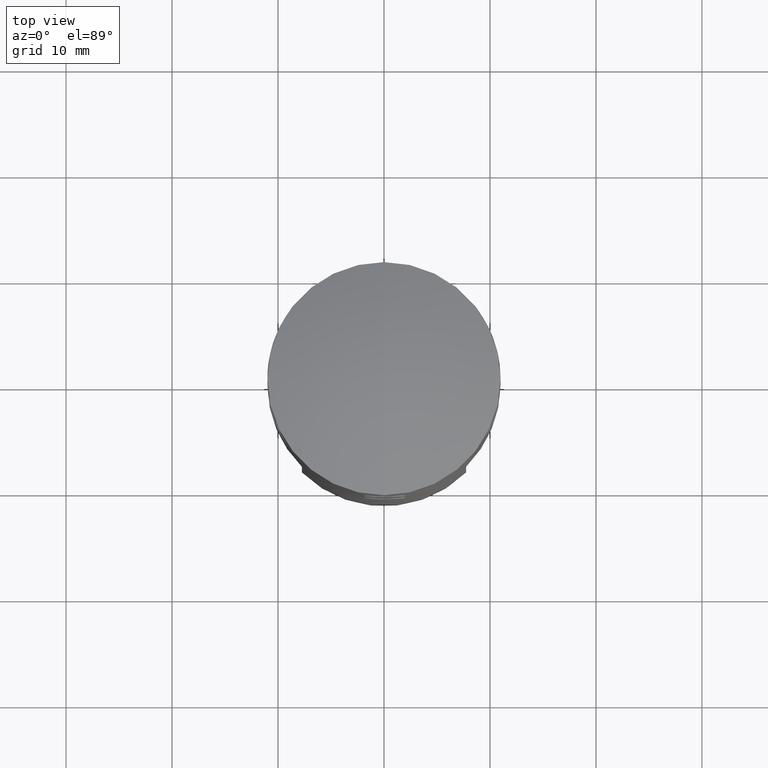
[diagram: clean part render]
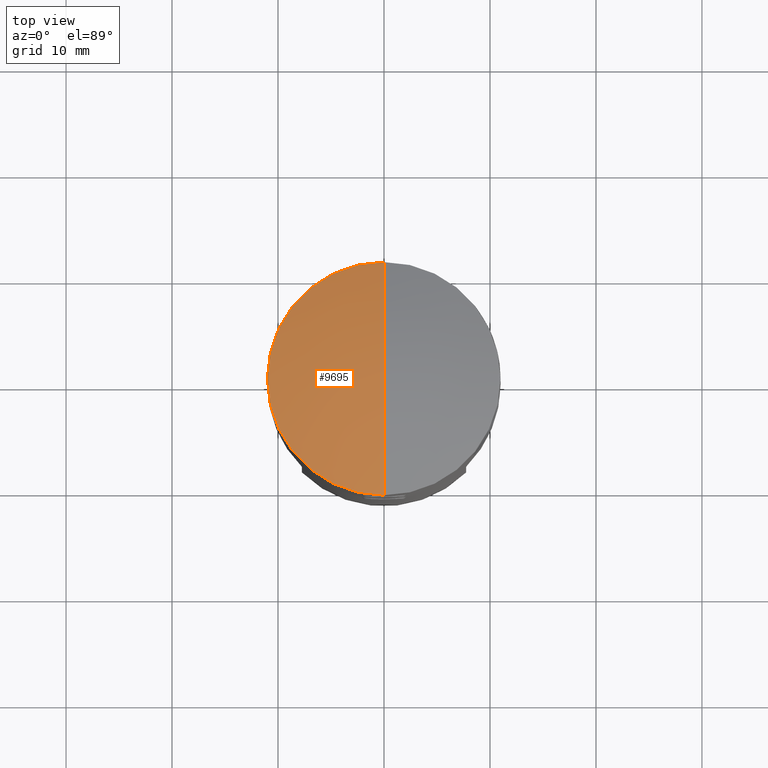
[diagram: same view with one face highlighted and labeled with its STEP entity id]
A machine part, top view. The second image highlights one B-rep face of the part: STEP entity #9695.
In plain terms, the highlighted spherical surface has radius 32.14 mm.
Its self-contained STEP definition (entity closure, byte-faithful):
#166 = CIRCLE ( 'NONE', #3909, 32.14000000000000057 ) ;
#453 = CARTESIAN_POINT ( 'NONE',  ( -1.347111479062088602E-15, -11.00000000000000000, 11.40899998344316124 ) ) ;
#563 = CARTESIAN_POINT ( 'NONE',  ( 0.000000000000000000, 0.000000000000000000, 11.40899998344315946 ) ) ;
#1214 = CARTESIAN_POINT ( 'NONE',  ( 0.000000000000000000, 0.000000000000000000, 11.40899998344315946 ) ) ;
#2822 = CIRCLE ( 'NONE', #6489, 11.00000000000000000 ) ;
#3107 = CIRCLE ( 'NONE', #5570, 32.14000000000000057 ) ;
#3909 = AXIS2_PLACEMENT_3D ( 'NONE', #12202, #5565, #8818 ) ;
#4687 = CARTESIAN_POINT ( 'NONE',  ( 0.000000000000000000, 1.968007406229796560E-15, 13.35000000000000142 ) ) ;
#4948 = CARTESIAN_POINT ( 'NONE',  ( -11.00000000000000000, 1.347111479062088405E-15, 11.40899998344315946 ) ) ;
#5126 = FACE_OUTER_BOUND ( 'NONE', #16982, .T. ) ;
#5565 = DIRECTION ( 'NONE',  ( -1.000000000000000000, 1.224646799147353207E-16, 0.000000000000000000 ) ) ;
#5570 = AXIS2_PLACEMENT_3D ( 'NONE', #16393, #8412, #9760 ) ;
#5584 = DIRECTION ( 'NONE',  ( -1.000000000000000000, 0.000000000000000000, 0.000000000000000000 ) ) ;
#5666 = ORIENTED_EDGE ( 'NONE', *, *, #11591, .T. ) ;
#5770 = VERTEX_POINT ( 'NONE', #453 ) ;
#6134 = EDGE_CURVE ( 'NONE', #11069, #13403, #3107, .T. ) ;
#6444 = DIRECTION ( 'NONE',  ( 1.000000000000000000, 0.000000000000000000, 0.000000000000000000 ) ) ;
#6489 = AXIS2_PLACEMENT_3D ( 'NONE', #1214, #12958, #6444 ) ;
#6776 = VERTEX_POINT ( 'NONE', #4948 ) ;
#7143 = CIRCLE ( 'NONE', #9095, 11.00000000000000000 ) ;
#8340 = DIRECTION ( 'NONE',  ( -0.000000000000000000, -0.000000000000000000, 1.000000000000000000 ) ) ;
#8412 = DIRECTION ( 'NONE',  ( 1.000000000000000000, 0.000000000000000000, 0.000000000000000000 ) ) ;
#8589 = ORIENTED_EDGE ( 'NONE', *, *, #11691, .T. ) ;
#8818 = DIRECTION ( 'NONE',  ( -1.224646799147353207E-16, -1.000000000000000000, 0.000000000000000000 ) ) ;
#9095 = AXIS2_PLACEMENT_3D ( 'NONE', #563, #8340, #16258 ) ;
#9695 = ADVANCED_FACE ( 'NONE', ( #5126 ), #9725, .T. ) ;
#9725 = SPHERICAL_SURFACE ( 'NONE', #11126, 32.14000000000000057 ) ;
#9760 = DIRECTION ( 'NONE',  ( 0.000000000000000000, 0.000000000000000000, -1.000000000000000000 ) ) ;
#11069 = VERTEX_POINT ( 'NONE', #14785 ) ;
#11126 = AXIS2_PLACEMENT_3D ( 'NONE', #13562, #5584, #14910 ) ;
#11259 = ORIENTED_EDGE ( 'NONE', *, *, #6134, .F. ) ;
#11591 = EDGE_CURVE ( 'NONE', #5770, #13403, #166, .T. ) ;
#11691 = EDGE_CURVE ( 'NONE', #11069, #6776, #2822, .T. ) ;
#12202 = CARTESIAN_POINT ( 'NONE',  ( 0.000000000000000000, 0.000000000000000000, -18.79000000000000270 ) ) ;
#12623 = ORIENTED_EDGE ( 'NONE', *, *, #16732, .T. ) ;
#12958 = DIRECTION ( 'NONE',  ( -0.000000000000000000, -0.000000000000000000, 1.000000000000000000 ) ) ;
#13403 = VERTEX_POINT ( 'NONE', #4687 ) ;
#13562 = CARTESIAN_POINT ( 'NONE',  ( 0.000000000000000000, 0.000000000000000000, -18.79000000000000270 ) ) ;
#14785 = CARTESIAN_POINT ( 'NONE',  ( 0.000000000000000000, 11.00000000000000000, 11.40899998344316124 ) ) ;
#14910 = DIRECTION ( 'NONE',  ( 0.000000000000000000, 1.000000000000000000, 0.000000000000000000 ) ) ;
#16258 = DIRECTION ( 'NONE',  ( 1.000000000000000000, 0.000000000000000000, 0.000000000000000000 ) ) ;
#16393 = CARTESIAN_POINT ( 'NONE',  ( 0.000000000000000000, 0.000000000000000000, -18.79000000000000270 ) ) ;
#16732 = EDGE_CURVE ( 'NONE', #6776, #5770, #7143, .T. ) ;
#16982 = EDGE_LOOP ( 'NONE', ( #8589, #12623, #5666, #11259 ) ) ;